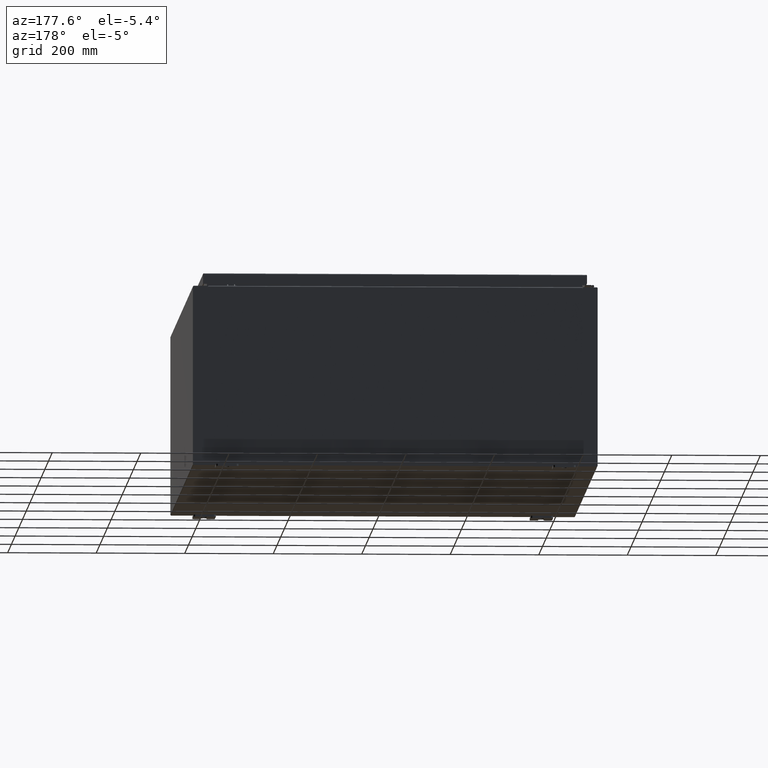
[diagram: clean part render]
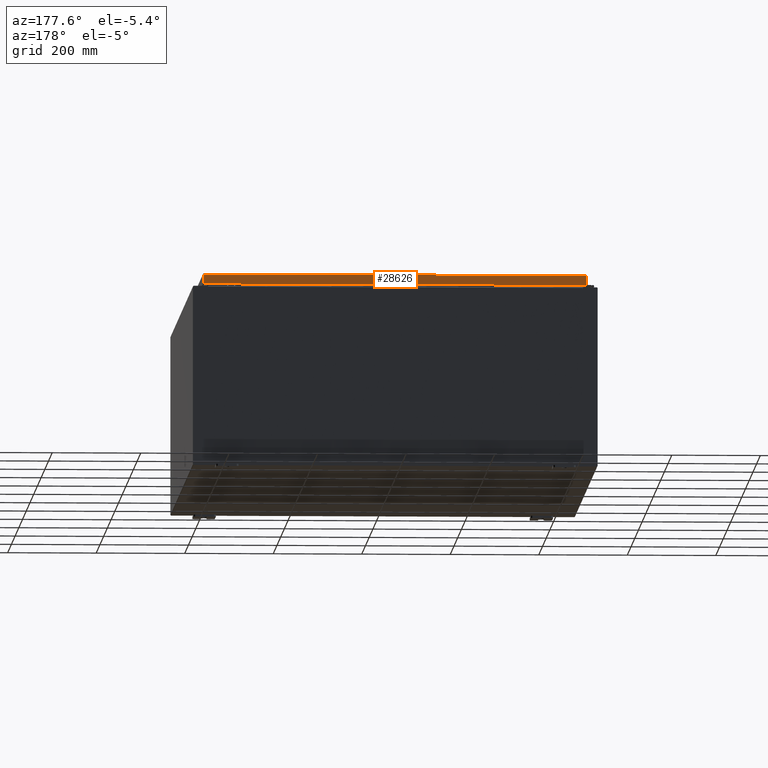
[diagram: same view with one face highlighted and labeled with its STEP entity id]
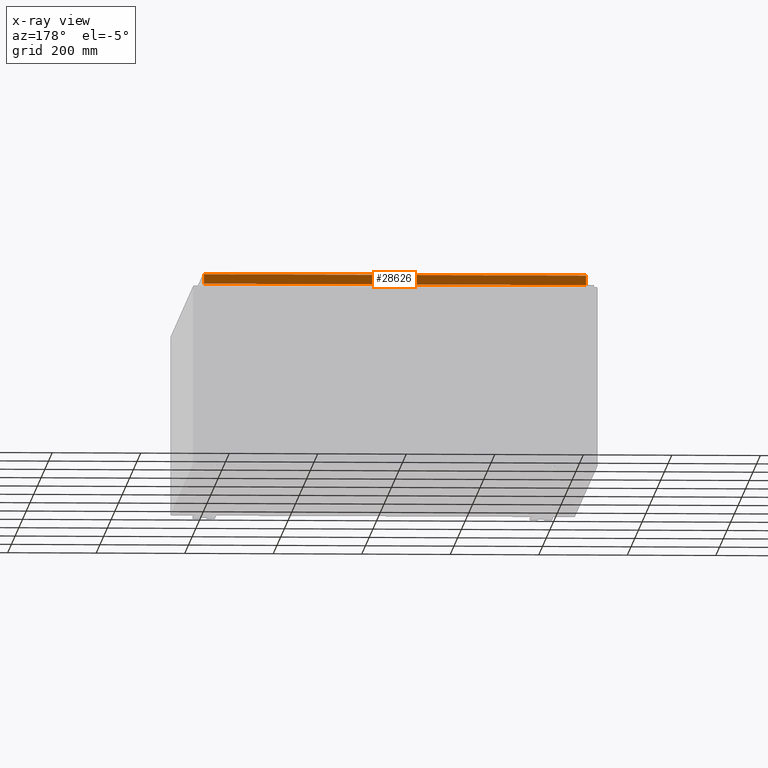
[diagram: x-ray of the same camera — body ghosted, the highlighted face saturated]
A machine part, auxiliary view. The second image highlights one B-rep face of the part: STEP entity #28626.
The next image is the same camera in x-ray: the body ghosted, the highlighted face saturated — about 0% of this face is hidden behind the body in this view.
In plain terms, the highlighted planar face has unit normal (0, -1, -0).
Its self-contained STEP definition (entity closure, byte-faithful):
#1135 = EDGE_CURVE ( 'NONE', #38676, #115186, #109801, .T. ) ;
#2632 = FACE_OUTER_BOUND ( 'NONE', #131832, .T. ) ;
#2678 = CARTESIAN_POINT ( 'NONE',  ( -1.450060434394706800E-029, 23.09400000000000500, 1.172282251335220500E-013 ) ) ;
#12057 = DIRECTION ( 'NONE',  ( 0.0000000000000000000, 5.064839849203707700E-015, -1.000000000000000000 ) ) ;
#15465 = ORIENTED_EDGE ( 'NONE', *, *, #97916, .F. ) ;
#18445 = CARTESIAN_POINT ( 'NONE',  ( -16.98915786437626400, 23.09400000000000800, -0.9377000000000040900 ) ) ;
#28626 = ADVANCED_FACE ( 'NONE', ( #2632 ), #95965, .F. ) ;
#38676 = VERTEX_POINT ( 'NONE', #120888 ) ;
#44302 = DIRECTION ( 'NONE',  ( 0.0000000000000000000, 5.064839849203707700E-015, -1.000000000000000000 ) ) ;
#47942 = VECTOR ( 'NONE', #132715, 39.37007874015748100 ) ;
#48089 = VECTOR ( 'NONE', #12057, 39.37007874015748100 ) ;
#49185 = EDGE_CURVE ( 'NONE', #93737, #115186, #51234, .T. ) ;
#51234 = LINE ( 'NONE', #90957, #47942 ) ;
#51392 = VECTOR ( 'NONE', #97379, 39.37007874015748100 ) ;
#61386 = DIRECTION ( 'NONE',  ( -1.000000000000000000, -6.278948793603129100E-031, -3.245122892416731400E-045 ) ) ;
#70534 = ORIENTED_EDGE ( 'NONE', *, *, #130380, .F. ) ;
#72839 = VECTOR ( 'NONE', #61386, 39.37007874015748100 ) ;
#76541 = CARTESIAN_POINT ( 'NONE',  ( -16.98915786437626400, 23.09400000000000500, -0.07469999999999962800 ) ) ;
#79735 = VERTEX_POINT ( 'NONE', #104082 ) ;
#81728 = CARTESIAN_POINT ( 'NONE',  ( 16.98915786437627100, 23.09400000000000800, -0.9376999999999997600 ) ) ;
#90957 = CARTESIAN_POINT ( 'NONE',  ( -17.07799999999999600, 23.09400000000000800, -0.9377000000000040900 ) ) ;
#93737 = VERTEX_POINT ( 'NONE', #18445 ) ;
#95965 = PLANE ( 'NONE',  #106447 ) ;
#97379 = DIRECTION ( 'NONE',  ( -0.0000000000000000000, 5.064839849203707700E-015, -1.000000000000000000 ) ) ;
#97916 = EDGE_CURVE ( 'NONE', #79735, #93737, #99995, .T. ) ;
#99995 = LINE ( 'NONE', #76541, #51392 ) ;
#104082 = CARTESIAN_POINT ( 'NONE',  ( -16.98915786437626400, 23.09400000000000500, -0.08769999999999550400 ) ) ;
#106437 = DIRECTION ( 'NONE',  ( 6.278948793603128200E-031, -1.000000000000000000, -5.064839849203707700E-015 ) ) ;
#106447 = AXIS2_PLACEMENT_3D ( 'NONE', #2678, #106437, #44302 ) ;
#107664 = ORIENTED_EDGE ( 'NONE', *, *, #49185, .F. ) ;
#109801 = LINE ( 'NONE', #126991, #48089 ) ;
#113173 = CARTESIAN_POINT ( 'NONE',  ( -17.07799999999999600, 23.09400000000000500, -0.08769999999999550400 ) ) ;
#115186 = VERTEX_POINT ( 'NONE', #81728 ) ;
#120799 = ORIENTED_EDGE ( 'NONE', *, *, #1135, .T. ) ;
#120888 = CARTESIAN_POINT ( 'NONE',  ( 16.98915786437627100, 23.09400000000000500, -0.08769999999999550400 ) ) ;
#126991 = CARTESIAN_POINT ( 'NONE',  ( 16.98915786437627100, 23.09400000000000500, 1.172282251335220500E-013 ) ) ;
#128039 = LINE ( 'NONE', #113173, #72839 ) ;
#130380 = EDGE_CURVE ( 'NONE', #38676, #79735, #128039, .T. ) ;
#131832 = EDGE_LOOP ( 'NONE', ( #70534, #120799, #107664, #15465 ) ) ;
#132715 = DIRECTION ( 'NONE',  ( 1.000000000000000000, 8.758115402030108600E-047, 1.239713195391617600E-016 ) ) ;